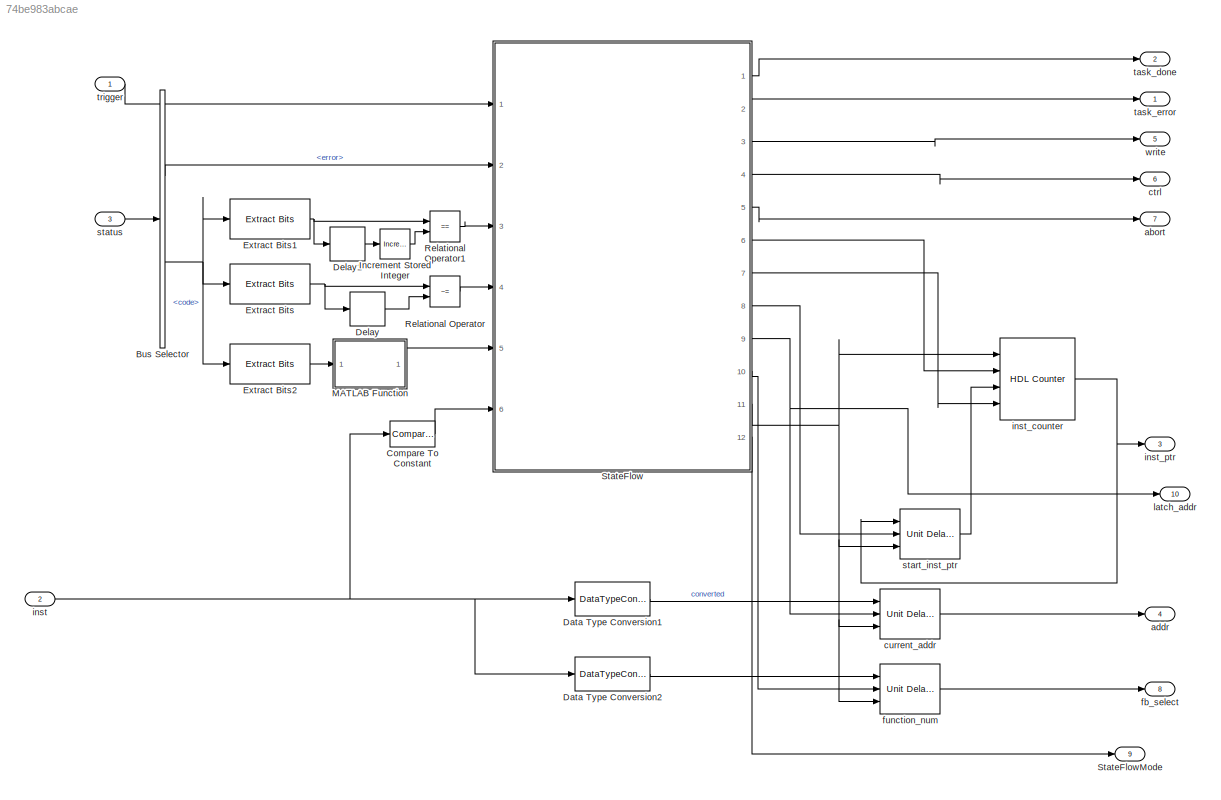
MODEL slx_74be983abcae
KIND model
CONFIG AbsTol = auto
CONFIG EnableMultiTasking = off
CONFIG FixedStep = auto
CONFIG MaxStep = auto
CONFIG MinStep = auto
CONFIG RelTol = 1e-3
CONFIG SampleTimeConstraint = Unconstrained
CONFIG Solver = FixedStepAuto
CONFIG SolverName = FixedStepAuto
CONFIG StartTime = 0.0
CONFIG StopTime = 70
BLOCK [BusSelector] Bus Selector
  OutputAsBus = off
  OutputSignals = error,code
  Ports = [1, 2]
BLOCK [Reference] Compare To Constant  REF=simulink/Logic and Bit
Operations/Compare
To Constant
  Ports = [1, 1]
  SourceBlock = simulink/Logic and Bit\nOperations/Compare\nTo Constant
  SourceProductBaseCode = SL
  SourceProductName = Simulink
  SourceType = Compare To Constant
BLOCK [DataTypeConversion] Data Type Conversion1
  RndMeth = Floor
  SaturateOnIntegerOverflow = off
BLOCK [DataTypeConversion] Data Type Conversion2
  RndMeth = Floor
  SaturateOnIntegerOverflow = off
BLOCK [Delay] Delay
  DelayLength = 1
  InputPortMap = u0
  Ports = [1, 1]
BLOCK [Delay] Delay1
  DelayLength = 1
  InputPortMap = u0
  Ports = [1, 1]
BLOCK [Reference] Extract Bits  REF=simulink/Logic and Bit
Operations/Extract Bits
  Ports = [1, 1]
  SourceBlock = simulink/Logic and Bit\nOperations/Extract Bits
  SourceProductBaseCode = SL
  SourceProductName = Simulink
  SourceType = Extract Bits
BLOCK [Reference] Extract Bits1  REF=simulink/Logic and Bit
Operations/Extract Bits
  Ports = [1, 1]
  SourceBlock = simulink/Logic and Bit\nOperations/Extract Bits
  SourceProductBaseCode = SL
  SourceProductName = Simulink
  SourceType = Extract Bits
BLOCK [Reference] Extract Bits2  REF=simulink/Logic and Bit
Operations/Extract Bits
  Ports = [1, 1]
  SourceBlock = simulink/Logic and Bit\nOperations/Extract Bits
  SourceProductBaseCode = SL
  SourceProductName = Simulink
  SourceType = Extract Bits
BLOCK [Reference] Increment Stored Integer  REF=simulink/Additional Math
& Discrete/Additional Math:
Increment - Decrement/Increment
Stored Integer
  Ports = [1, 1]
  SourceBlock = simulink/Additional Math\n& Discrete/Additional Math:\nIncrement - Decrement/Increment\nStored Integer
  SourceProductBaseCode = SL
  SourceProductName = Simulink
  SourceType = Stored Integer Value Increment
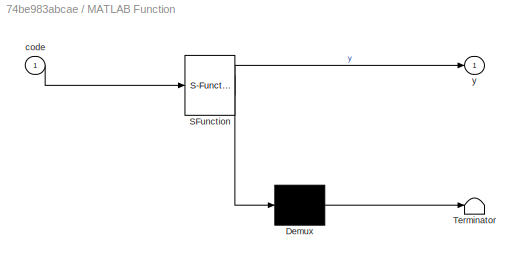
BLOCK [SubSystem] MATLAB Function
  ErrorFcn = Stateflow.Translate.translate
  PermitHierarchicalResolution = ExplicitOnly
  Ports = [1, 1]
  RequestExecContextInheritance = off
  SFBlockType = MATLAB Function
  TreatAsAtomicUnit = on
BLOCK [Demux] MATLAB Function/ Demux 
  Outputs = 1
  Ports = [1, 1]
BLOCK [S-Function] MATLAB Function/ SFunction 
  EnableBusSupport = on
  FunctionName = sf_sfun
  PortCounts = [1 2]
  Ports = [1, 2]
  SFcnIsStateOwnerBlock = off
  SFunctionDeploymentMode = off
  Tag = Stateflow S-Function local_sequencer 2
BLOCK [Terminator] MATLAB Function/ Terminator 
BLOCK [Inport] MATLAB Function/code
  IconDisplay = Port number
BLOCK [Outport] MATLAB Function/y
  IconDisplay = Port number
BLOCK [RelationalOperator] Relational Operator
  InputSameDT = off
  Operator = ~=
  OutDataTypeStr = boolean
  Ports = [2, 1]
BLOCK [RelationalOperator] Relational Operator1
  InputSameDT = off
  Operator = ==
  OutDataTypeStr = boolean
  Ports = [2, 1]
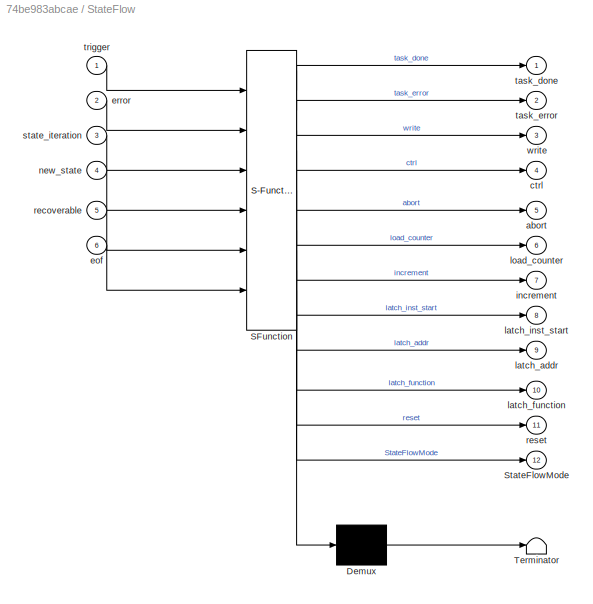
BLOCK [SubSystem] StateFlow
  ErrorFcn = Stateflow.Translate.translate
  PermitHierarchicalResolution = ExplicitOnly
  Ports = [6, 12]
  RequestExecContextInheritance = off
  SFBlockType = Chart
  TreatAsAtomicUnit = on
BLOCK [Demux] StateFlow/ Demux 
  Outputs = 1
  Ports = [1, 1]
BLOCK [S-Function] StateFlow/ SFunction 
  EnableBusSupport = on
  FunctionName = sf_sfun
  PortCounts = [6 13]
  Ports = [6, 13]
  SFcnIsStateOwnerBlock = off
  SFunctionDeploymentMode = off
  Tag = Stateflow S-Function local_sequencer 1
BLOCK [Terminator] StateFlow/ Terminator 
BLOCK [Outport] StateFlow/StateFlowMode
  IconDisplay = Port number
  Port = 12
BLOCK [Outport] StateFlow/abort
  IconDisplay = Port number
  Port = 5
BLOCK [Outport] StateFlow/ctrl
  IconDisplay = Port number
  Port = 4
BLOCK [Inport] StateFlow/eof
  IconDisplay = Port number
  Port = 6
BLOCK [Inport] StateFlow/error
  IconDisplay = Port number
  Port = 2
BLOCK [Outport] StateFlow/increment
  IconDisplay = Port number
  Port = 7
BLOCK [Outport] StateFlow/latch_addr
  IconDisplay = Port number
  Port = 9
BLOCK [Outport] StateFlow/latch_function
  IconDisplay = Port number
  Port = 10
BLOCK [Outport] StateFlow/latch_inst_start
  IconDisplay = Port number
  Port = 8
BLOCK [Outport] StateFlow/load_counter
  IconDisplay = Port number
  Port = 6
BLOCK [Inport] StateFlow/new_state
  IconDisplay = Port number
  Port = 4
BLOCK [Inport] StateFlow/recoverable
  IconDisplay = Port number
  Port = 5
BLOCK [Outport] StateFlow/reset
  IconDisplay = Port number
  Port = 11
BLOCK [Inport] StateFlow/state_iteration
  IconDisplay = Port number
  Port = 3
BLOCK [Outport] StateFlow/task_done
  IconDisplay = Port number
BLOCK [Outport] StateFlow/task_error
  IconDisplay = Port number
  Port = 2
BLOCK [Inport] StateFlow/trigger
  IconDisplay = Port number
BLOCK [Outport] StateFlow/write
  IconDisplay = Port number
  Port = 3
BLOCK [Outport] StateFlowMode
  IconDisplay = Port number
  Port = 9
BLOCK [Outport] abort
  IconDisplay = Port number
  OutDataTypeStr = boolean
  Port = 7
BLOCK [Outport] addr
  IconDisplay = Port number
  OutDataTypeStr = task_memory_addr_type
  OutMin = [0]
  Port = 4
BLOCK [Outport] ctrl
  IconDisplay = Port number
  OutDataTypeStr = boolean
  Port = 6
BLOCK [Reference] current_addr  REF=hdlsllib/Discrete/Unit Delay Enabled Resettable
Synchronous
  Ports = [3, 1]
  SourceBlock = hdlsllib/Discrete/Unit Delay Enabled Resettable\nSynchronous
  SourceProductBaseCode = HD
  SourceProductName = HDL Coder
  SourceType = Unit Delay Enabled Resettable Synchronous
BLOCK [Outport] fb_select
  IconDisplay = Port number
  OutDataTypeStr = fb_select_type
  Port = 8
BLOCK [Reference] function_num  REF=hdlsllib/Discrete/Unit Delay Enabled Resettable
Synchronous
  Ports = [3, 1]
  SourceBlock = hdlsllib/Discrete/Unit Delay Enabled Resettable\nSynchronous
  SourceProductBaseCode = HD
  SourceProductName = HDL Coder
  SourceType = Unit Delay Enabled Resettable Synchronous
BLOCK [Inport] inst
  IconDisplay = Port number
  OutDataTypeStr = task_inst_data_type
  Port = 2
  SampleTime = 1
  SignalType = real
BLOCK [Reference] inst_counter  REF=hdlsllib/Sources/HDL Counter
  Ports = [4, 1]
  SourceBlock = hdlsllib/Sources/HDL Counter
  SourceProductBaseCode = HD
  SourceProductName = HDL Coder
  SourceType = HDL Counter
BLOCK [Outport] inst_ptr
  IconDisplay = Port number
  OutDataTypeStr = task_inst_ptr_type
  Port = 3
BLOCK [Outport] latch_addr
  IconDisplay = Port number
  OutDataTypeStr = boolean
  OutMin = [0]
  Port = 10
BLOCK [Reference] start_inst_ptr  REF=hdlsllib/Discrete/Unit Delay Enabled Resettable
Synchronous
  Ports = [3, 1]
  SourceBlock = hdlsllib/Discrete/Unit Delay Enabled Resettable\nSynchronous
  SourceProductBaseCode = HD
  SourceProductName = HDL Coder
  SourceType = Unit Delay Enabled Resettable Synchronous
BLOCK [Inport] status
  IconDisplay = Port number
  OutDataTypeStr = Bus: fb_status
  Port = 3
  SampleTime = 1
BLOCK [Outport] task_done
  IconDisplay = Port number
  OutDataTypeStr = boolean
  Port = 2
BLOCK [Outport] task_error
  IconDisplay = Port number
  OutDataTypeStr = boolean
BLOCK [Inport] trigger
  IconDisplay = Port number
  OutDataTypeStr = boolean
  SampleTime = 1
BLOCK [Outport] write
  IconDisplay = Port number
  OutDataTypeStr = boolean
  Port = 5
LINE Bus Selector:1 -> StateFlow:2
NET Bus Selector:2 -> Extract Bits1:1, Extract Bits2:1, Extract Bits:1
LINE Compare To Constant:1 -> StateFlow:6
LINE Data Type Conversion1:1 -> current_addr:1
LINE Data Type Conversion2:1 -> function_num:1
LINE Delay1:1 -> Increment Stored Integer:1
LINE Delay:1 -> Relational Operator:2
NET Extract Bits1:1 -> Delay1:1, Relational Operator1:1
LINE Extract Bits2:1 -> MATLAB Function:1
NET Extract Bits:1 -> Delay:1, Relational Operator:1
LINE Increment Stored Integer:1 -> Relational Operator1:2
LINE MATLAB Function:1 -> StateFlow:5
LINE Relational Operator1:1 -> StateFlow:3
LINE Relational Operator:1 -> StateFlow:4
LINE StateFlow:1 -> task_done:1
LINE StateFlow:10 -> function_num:2
NET StateFlow:11 -> current_addr:3, function_num:3, inst_counter:1, start_inst_ptr:3
LINE StateFlow:12 -> StateFlowMode:1
LINE StateFlow:2 -> task_error:1
LINE StateFlow:3 -> write:1
LINE StateFlow:4 -> ctrl:1
LINE StateFlow:5 -> abort:1
LINE StateFlow:6 -> inst_counter:2
LINE StateFlow:7 -> inst_counter:4
LINE StateFlow:8 -> start_inst_ptr:2
NET StateFlow:9 -> current_addr:2, latch_addr:1
LINE current_addr:1 -> addr:1
LINE function_num:1 -> fb_select:1
NET inst:1 -> Compare To Constant:1, Data Type Conversion1:1, Data Type Conversion2:1
NET inst_counter:1 -> inst_ptr:1, start_inst_ptr:1
LINE start_inst_ptr:1 -> inst_counter:3
LINE status:1 -> Bus Selector:1
LINE trigger:1 -> StateFlow:1
note: NET lines group one-source signal fan-out (src -> all destinations, sorted); 1:1 wires keep LINE
CHART Test Assessment Block states=67 transitions=117
  STATE_LABEL 'Run\nif TestCase == 1\n    verify(task_done ==  0);\n    verify(inst_ptr == 0);\n    verify(task_error == 0);\n    verify(latch_addr ==  0)\n    verify(write == 0)\n    verify(ctrl == 0)\n    verify(abort == 0)\n    verify(fb_select == 0);\nend'
  STATE_LABEL 'step2\nif TestCase == 2\n    verify(task_done ==  0);\n    verify(inst_ptr == 0);\n    verify(task_error == 0);\n    verify(latch_addr ==  0)\n    verify(write == 0)\n    verify(ctrl == 0)\n    verify(abort == 0)\n    verify(fb_select == 42);\nend'
  STATE_LABEL 'step3\nif TestCase == 2\n    verify(task_done ==  0);\n    verify(inst_ptr == 1);\n    verify(task_error == 0);\n    verify(latch_addr ==  0)\n    verify(write == 0)\n    verify(ctrl == 0)\n    verify(abort == 0)\n    verify(fb_select == 42);\nend'
  STATE_LABEL 'step4\nif TestCase == 3\n    verify(task_done ==  0);\n    verify(inst_ptr == 1);\n    verify(task_error == 0);\n    verify(latch_addr ==  1)\n    verify(int32(addr) == 32)\n    verify(write == 0)\n    verify(ctrl == 0)\n    verify(abort == 0)\n    verify(fb_select == 42);\nend'
  STATE_LABEL 'step5\nif TestCase == 3\n    verify(task_done ==  0);\n    verify(inst_ptr == 1);\n    verify(task_error == 0);\n    verify(latch_addr ==  0)\n    verify(write == 0)\n    verify(ctrl == 0)\n    verify(abort == 0)\n    verify(fb_select == 42);\nend'
  STATE_LABEL 'step6\nif TestCase == 3\n    verify(task_done ==  0);\n    verify(inst_ptr == 1);\n    verify(task_error == 0);\n    verify(latch_addr ==  0)\n    verify(write == 0)\n    verify(ctrl == 1)\n    verify(abort == 0)\n    verify(fb_select == 42);\nend'
  STATE_LABEL 'step7\nif TestCase == 3\n    verify(task_done ==  0);\n    verify(inst_ptr == 1);\n    verify(task_error == 0);\n    verify(latch_addr ==  0)\n    verify(write == 0)\n    verify(ctrl == 0)\n    verify(abort == 0)\n    verify(fb_select == 42);\nend'
  STATE_LABEL 'step8\nif TestCase == 3\n    verify(task_done ==  0);\n    verify(inst_ptr == 2);\n    verify(task_error == 0);\n    verify(latch_addr ==  0)\n    verify(write == 0)\n    verify(ctrl == 0)\n    verify(abort == 0)\n    verify(fb_select == 42);\nend'
  STATE_LABEL 'step9\nif TestCase == 4\n    verify(task_done ==  0);\n    verify(inst_ptr == 2);\n    verify(task_error == 0);\n    verify(latch_addr ==  1)\n    verify(write == 0)\n    verify(ctrl == 0)\n    verify(abort == 0)\n    verify(fb_select == 42);\nend'
  STATE_LABEL 'step10\nif TestCase == 4\n    verify(task_done ==  0);\n    verify(inst_ptr == 2);\n    verify(task_error == 0);\n    verify(latch_addr ==  0)\n    verify(write == 0)\n    verify(ctrl == 0)\n    verify(abort == 0)\n    verify(fb_select == 42);\nend'
  STATE_LABEL 'step11\nif TestCase == 4\n    verify(task_done ==  0);\n    verify(inst_ptr == 2);\n    verify(task_error == 0);\n    verify(latch_addr ==  0)\n    verify(write == 0)\n    verify(ctrl == 1)\n    verify(abort == 0)\n    verify(fb_select == 42);\nend'
  STATE_LABEL 'step12\nif TestCase == 4\n    verify(task_done ==  0);\n    verify(inst_ptr == 2);\n    verify(task_error == 0);\n    verify(latch_addr ==  0)\n    verify(write == 0)\n    verify(ctrl == 0)\n    verify(abort == 0)\n    verify(fb_select == 42);\nend'
  STATE_LABEL 'step13\nif TestCase == 4\n    verify(task_done ==  0);\n    verify(inst_ptr == 2);\n    verify(task_error == 0);\n    verify(latch_addr ==  0)\n    verify(write == 0)\n    verify(ctrl == 0)\n    verify(abort == 0)\n    verify(fb_select == 42);\nend'
  STATE_LABEL 'step14\nif TestCase == 4\n    verify(task_done ==  0);\n    verify(inst_ptr == 3);\n    verify(task_error == 0);\n    verify(latch_addr ==  0)\n    verify(write == 0)\n    verify(ctrl == 0)\n    verify(abort == 0)\n    verify(fb_select == 42);\nend'
  STATE_LABEL 'step15\nif TestCase == 5\n    verify(task_done ==  0);\n    verify(inst_ptr == 3);\n    verify(task_error == 0);\n    verify(latch_addr ==  1)\n    verify(write == 0)\n    verify(ctrl == 0)\n    verify(abort == 0)\n    verify(fb_select == 42);\nend'
  STATE_LABEL 'step16\nif TestCase == 5\n    verify(task_done ==  0);\n    verify(inst_ptr == 3);\n    verify(task_error == 0);\n    verify(latch_addr ==  0)\n    verify(write == 0)\n    verify(ctrl == 0)\n    verify(abort == 0)\n    verify(fb_select == 42);\nend'
  STATE_LABEL 'step17\nif TestCase == 5\n    verify(task_done ==  0);\n    verify(inst_ptr == 3);\n    verify(task_error == 0);\n    verify(latch_addr ==  0)\n    verify(write == 0)\n    verify(ctrl == 1)\n    verify(abort == 0)\n    verify(fb_select == 42);\nend'
  STATE_LABEL 'step18\nif TestCase == 5\n    verify(task_done ==  0);\n    verify(inst_ptr == 3);\n    verify(task_error == 0);\n    verify(latch_addr ==  0)\n    verify(write == 0)\n    verify(ctrl == 0)\n    verify(abort == 0)\n    verify(fb_select == 42);\nend'
  STATE_LABEL 'step19\nif TestCase == 5\n    verify(task_done ==  0);\n    verify(inst_ptr == 3);\n    verify(task_error == 0);\n    verify(latch_addr ==  0)\n    verify(write == 0)\n    verify(ctrl == 0)\n    verify(abort == 0)\n    verify(fb_select == 42);\nend'
  STATE_LABEL 'step20\nif TestCase == 5\n    verify(task_done ==  0);\n    verify(inst_ptr == 4);\n    verify(task_error == 0);\n    verify(latch_addr ==  0)\n    verify(write == 0)\n    verify(ctrl == 0)\n    verify(abort == 0)\n    verify(fb_select == 42);\nend'
  STATE_LABEL 'step21\nif TestCase == 6\n    verify(task_done ==  0);\n    verify(inst_ptr == 4);\n    verify(task_error == 0);\n    verify(latch_addr ==  0)\n    verify(write == 0)\n    verify(ctrl == 1)\n    verify(abort == 0)\n    verify(fb_select == 42);\nend'
  STATE_LABEL 'step22\nif TestCase == 6\n    verify(task_done ==  0);\n    verify(inst_ptr == 4);\n    verify(task_error == 0);\n    verify(latch_addr ==  0)\n    verify(write == 0)\n    verify(ctrl == 0)\n    verify(abort == 0)\n    verify(fb_select == 42);\nend'
  STATE_LABEL 'step23\nif TestCase == 7\n    verify(task_done ==  0);\n    verify(inst_ptr == 4);\n    verify(task_error == 0);\n    verify(latch_addr ==  1);\n    verify(write == 0)\n    verify(ctrl == 0)\n    verify(abort == 0)\n    verify(fb_select == 42);\nend'
  STATE_LABEL 'step24\nif TestCase == 7\n    verify(task_done ==  0);\n    verify(inst_ptr == 4);\n    verify(task_error == 0);\n    verify(latch_addr ==  0);\n    verify(write == 0)\n    verify(ctrl == 1)\n    verify(abort == 0)\n    verify(fb_select == 42);\nend'
  STATE_LABEL 'step25\nif TestCase == 8\n    verify(task_done ==  0);\n    verify(inst_ptr == 4);\n    verify(task_error == 0);\n    verify(latch_addr ==  0);\n    verify(write == 0)\n    verify(ctrl == 0)\n    verify(abort == 0)\n    verify(fb_select == 42);\nend'
  STATE_LABEL 'step26\nif TestCase == 8\n    verify(task_done ==  0);\n    verify(inst_ptr == 4);\n    verify(task_error == 0);\n    verify(latch_addr ==  0);\n    verify(write == 1)\n    verify(ctrl == 0)\n    verify(abort == 0)\n    verify(fb_select == 42);\nend'
  STATE_LABEL 'step27\nif TestCase == 8\n    verify(task_done ==  0);\n    verify(inst_ptr == 4);\n    verify(task_error == 0);\n    verify(latch_addr ==  0);\n    verify(write == 0)\n    verify(ctrl == 0)\n    verify(abort == 0)\n    verify(fb_select == 42);\nend'
  STATE_LABEL 'step28\nif TestCase == 8\n    verify(task_done ==  0);\n    verify(inst_ptr == 5);\n    verify(task_error == 0);\n    verify(latch_addr ==  0);\n    verify(write == 0)\n    verify(ctrl == 0)\n    verify(abort == 0)\n    verify(fb_select == 42);\nend'
  STATE_LABEL 'step29\nif TestCase == 9\n    verify(task_done ==  0);\n    verify(inst_ptr == 5);\n    verify(task_error == 0);\n    verify(latch_addr ==  1);\n    verify(write == 0)\n    verify(ctrl == 0)\n    verify(abort == 0)\n    verify(fb_select == 42);\nend'
  STATE_LABEL 'step30\nif TestCase == 9\n    verify(task_done ==  0);\n    verify(inst_ptr == 5);\n    verify(task_error == 0);\n    verify(latch_addr ==  0);\n    verify(write == 0)\n    verify(ctrl == 1)\n    verify(abort == 0)\n    verify(fb_select == 42);\nend'
  STATE_LABEL 'step31\nif TestCase == 9\n    verify(task_done ==  0);\n    verify(inst_ptr == 5);\n    verify(task_error == 0);\n    verify(latch_addr ==  0);\n    verify(write == 0)\n    verify(ctrl == 0)\n    verify(abort == 0)\n    verify(fb_select == 42);\nend'
  STATE_LABEL 'step32\nif TestCase == 9\n    verify(task_done ==  0);\n    verify(inst_ptr == 5);\n    verify(task_error == 0);\n    verify(latch_addr ==  0);\n    verify(write == 1)\n    verify(ctrl == 0)\n    verify(abort == 0)\n    verify(fb_select == 42);\nend'
  STATE_LABEL 'step33\nif TestCase == 9\n    verify(task_done ==  0);\n    verify(inst_ptr == 5);\n    verify(task_error == 0);\n    verify(latch_addr ==  0);\n    verify(write == 0)\n    verify(ctrl == 0)\n    verify(abort == 0)\n    verify(fb_select == 42);\nend'
  STATE_LABEL 'step34\nif TestCase == 9\n    verify(task_done ==  0);\n    verify(inst_ptr == 6);\n    verify(task_error == 0);\n    verify(latch_addr ==  0);\n    verify(write == 0)\n    verify(ctrl == 0)\n    verify(abort == 0)\n    verify(fb_select == 42);\nend'
  STATE_LABEL 'step35\nif TestCase == 9\n    verify(task_done ==  0);\n    verify(inst_ptr == 6);\n    verify(task_error == 0);\n    verify(latch_addr ==  0);\n    verify(write == 0)\n    verify(ctrl == 1)\n    verify(abort == 0)\n    verify(fb_select == 42);\nend'
  STATE_LABEL 'step36\nif TestCase == 9\n    verify(task_done ==  0);\n    verify(inst_ptr == 6);\n    verify(task_error == 0);\n    verify(latch_addr ==  0);\n    verify(write == 0)\n    verify(ctrl == 0)\n    verify(abort == 0)\n    verify(fb_select == 42);\nend'
  STATE_LABEL 'step37\nif TestCase == 10\n    verify(task_done ==  0);\n    verify(inst_ptr == 6);\n    verify(task_error == 0);\n    verify(latch_addr ==  0);\n    verify(write == 0)\n    verify(ctrl == 0)\n    verify(abort == 0)\n    verify(fb_select == 42);\nend'
  STATE_LABEL 'step38\nif TestCase == 10\n    verify(task_done ==  0);\n    verify(inst_ptr == 6);\n    verify(task_error == 0);\n    verify(latch_addr ==  0);\n    verify(write == 0)\n    verify(ctrl == 0)\n    verify(abort == 0)\n    verify(fb_select == 41);\nend'
  STATE_LABEL 'step39\nif TestCase == 10\n    verify(task_done ==  0);\n    verify(inst_ptr == 7);\n    verify(task_error == 0);\n    verify(latch_addr ==  0);\n    verify(write == 0)\n    verify(ctrl == 0)\n    verify(abort == 0)\n    verify(fb_select == 41);\nend'
  STATE_LABEL 'step40\nif TestCase == 11\n    verify(task_done ==  0);\n    verify(inst_ptr == 7);\n    verify(task_error == 0);\n    verify(latch_addr ==  1);\n    verify(write == 0)\n    verify(ctrl == 0)\n    verify(abort == 0)\n    verify(fb_select == 41);\nend'
CHART Test Sequence states=34 transitions=91
  STATE_LABEL 'Run\n\n%% Initialize data outputs.\ntrigger = false;\ninst = 42;\nstatus.done = false;\nstatus.busy = false;\nstatus.error = false;\nstatus.code = uint32(0);'
  STATE_LABEL 'step_1\ntrigger = true;'
  STATE_LABEL 'step_2\ninst = 42;'
  STATE_LABEL 'step_3\ninst = 32;\nstatus.code = uint32(0);'
  STATE_LABEL 'step_4\nstatus.code = uint32(4194304);'
  STATE_LABEL 'step_5\nstatus.code = uint32(8388608);'
  STATE_LABEL 'step_6\nstatus.code = uint32(268435456)'
  STATE_LABEL 'step_7\nstatus.code = uint32(536870912)'
  STATE_LABEL 'step_8\nstatus.code = uint32(541065216)\ninst = 41'
  STATE_LABEL 'step_9\nstatus.code = uint32(805306369)'
  STATE_LABEL 'step_10\nstatus.error = logical(1);'
  STATE_LABEL 'step_11\nstatus.code = uint32(0)'
  STATE_LABEL 'step_12\nstatus.code = uint32(4194305)'
  STATE_LABEL 'step_13\nstatus.error = logical(0);'
  STATE_LABEL 'step_14\nstatus.code = uint32(268435456);\n'
  STATE_LABEL 'step_15\nstatus.error = logical(1);'
  STATE_LABEL 'step_16\ntrigger =false;\ninst = 42;\nstatus.error = logical(0);'
  STATE_LABEL 'step_17\ntrigger = true;\nstatus.code = uint32(0);\ninst =50;'
  STATE_LABEL 'step_18\nstatus.code = uint32(268435456);\n'
  STATE_LABEL 'step_19\nstatus.code = uint32(536870912);'
  STATE_LABEL 'step_20\nstatus.error = logical(1);\nstatus.code = uint32(4194305)'
  STATE_LABEL 'step_21\nstatus.error = logical(0);\nstatus.code = uint32(0);\ninst =50;'
  STATE_LABEL 'step_22\nstatus.code = uint32(268435456);\n'
  STATE_LABEL 'step_23\nstatus.code = uint32(536870912)'
  STATE_LABEL 'step_24\nstatus.code = uint32(805306369)'
  STATE_LABEL 'step_25\nstatus.code = uint32(1073741824)'
  STATE_LABEL 'step_26\nstatus.code = uint32(1342177280)\ninst = 2147483647'
  STATE_LABEL 'step_27\ntrigger = false;'
  STATE_LABEL 'step_28\ntrigger = true;\ninst=52;\nstatus.code = uint32(0);'
  STATE_LABEL 'step_29\n'
  STATE_LABEL 'step_30\nstatus.code = uint32(268435456);'
  STATE_LABEL 'step_31\nstatus.code = uint32(536870912)'
  STATE_LABEL 'step_32\nstatus.error = logical(1);'
  STATE_LABEL 'EndTest'
CHART StateFlow states=32 transitions=60
  STATE_LABEL 'Make trigger and enable to chart?'
  STATE_LABEL 'INIT\ntask_done = false;\ntask_error = false;\nwrite = false;\nload_counter = false;\nctrl = false;\nabort = false;\nincrement = false;\nlatch_inst_start = false;\nlatch_addr = false;\nlatch_function = false;\nreset = true;\n\n'
  STATE_LABEL 'FB_SELECT\n'
  STATE_LABEL 'LOAD_INST_START\ntask_done = false;\ntask_error = false;\nwrite = false;\nctrl = false;\nabort = false;\nload_counter = true;\nincrement = false;\nlatch_inst_start = false;\nlatch_addr = false;\nlatch_function = false;\nreset = false;\n\n'
  STATE_LABEL 'LATCH_INST_START\ntask_done = false;\ntask_error = false;\nwrite = false;\nctrl = false;\nabort = false;\nload_counter = false;\nincrement = false;\nlatch_inst_start = true;\nlatch_addr = false;\nlatch_function = true;\nreset = false;\n\n'
  STATE_LABEL 'INCREMENT_INST\ntask_done = false;\ntask_error = false;\nwrite = false;\nctrl = false;\nabort = false;\nload_counter = false;\nincrement = true;\nlatch_inst_start = false;\nlatch_addr = false;\nlatch_function = false;\nreset = false;\n\n'  <repeated x4 — deduplicated; at blocks: StateFlow>
  STATE_LABEL 'INST_WAIT\ntask_done = false;\ntask_error = false;\nwrite = false;\nctrl = false;\nabort = false;\nload_counter = false;\nincrement = false;\nlatch_inst_start = false;\nlatch_addr = false;\nlatch_function = false;\nreset = false;\n\n'  <repeated x4 — deduplicated; at blocks: StateFlow>
  STATE_LABEL '[recoverable]'
  STATE_LABEL 'LOAD_INST_START\ntask_done = false;\ntask_error = false;\nwrite = false;\nctrl = false;\nabort = false;\nload_counter = true;\nincrement = false;\nlatch_inst_start = false;\nlatch_addr = false;\nlatch_function = false;\nreset = false;\n\n'
  STATE_LABEL 'LATCH_INST_START\ntask_done = false;\ntask_error = false;\nwrite = false;\nctrl = false;\nabort = false;\nload_counter = false;\nincrement = false;\nlatch_inst_start = true;\nlatch_addr = false;\nlatch_function = true;\nreset = false;\n\n'
  STATE_LABEL 'FETCH\n'
  STATE_LABEL 'CTRL_LO\ntask_done = false;\ntask_error = false;\nwrite = false;\nctrl = false;\nabort = false;\nload_counter = false;\nincrement = false;\nlatch_inst_start = false;\nlatch_addr = false;\nlatch_function = false;\nreset = false;\n\n'  <repeated x4 — deduplicated; at blocks: StateFlow>
  STATE_LABEL 'CTRL_HI\ntask_done = false;\ntask_error = false;\nwrite = false;\nctrl = true;\nabort = false;\nload_counter = false;\nincrement = false;\nlatch_inst_start = false;\nlatch_addr = false;\nlatch_function = false;\nreset = false;\n\n'  <repeated x4 — deduplicated; at blocks: StateFlow>
  STATE_LABEL 'LATCH_ADDR\ntask_done = false;\ntask_error = false;\nwrite = false;\nctrl = false;\nabort = false;\nload_counter = false;\nincrement = false;\nlatch_inst_start = false;\nlatch_addr = true;\nlatch_function = false;\nreset = false;\n\n'
  STATE_LABEL 'MEM_WAIT\ntask_done = false;\ntask_error = false;\nwrite = false;\nctrl = false;\nabort = false;\nload_counter = false;\nincrement = false;\nlatch_inst_start = false;\nlatch_addr = false;\nlatch_function = false;\nreset = false;\n\n'
  STATE_LABEL 'LATCH_ADDR\ntask_done = false;\ntask_error = false;\nwrite = false;\nctrl = false;\nabort = false;\nload_counter = false;\nincrement = false;\nlatch_inst_start = false;\nlatch_addr = true;\nlatch_function = false;\nreset = false;\n\n'
  STATE_LABEL 'MEM_WAIT\ntask_done = false;\ntask_error = false;\nwrite = false;\nctrl = false;\nabort = false;\nload_counter = false;\nincrement = false;\nlatch_inst_start = false;\nlatch_addr = false;\nlatch_function = false;\nreset = false;\n\n'
  STATE_LABEL 'FB_EXECUTE'
  STATE_LABEL '[new_state]'
  STATE_LABEL 'ERROR'
  STATE_LABEL 'CTRL_HI\n%set control and clear init\ntask_done = false;\ntask_error = false;\nwrite = false;\nctrl = true;\nabort = false;\nload_counter = false;\nincrement = false;\nlatch_inst_start = false;\nlatch_addr = false;\nlatch_function = false;\nreset = false;\n\n\n'
  STATE_LABEL 'ABORT_CTRL_LO\n%task_error and init \n%unchanged\ntask_done = false;\ntask_error = task_error;\nwrite = false;\nctrl = false;\nabort = false;\nload_counter = false;\nincrement = false;\nlatch_inst_start = false;\nlatch_addr = false;\nlatch_function = false;\nreset = false;\n\n'
  STATE_LABEL 'ABORT_CTRL_HI\n%set control, abort, and init\ntask_done = false;\ntask_error = true;\nwrite = false;\nctrl = true;\nabort = true;\nload_counter = false;\nincrement = false;\nlatch_inst_start = false;\nlatch_addr = false;\nlatch_function = false;\nreset = false;\n\n'
  STATE_LABEL '[recoverable]'
  STATE_LABEL 'CTRL_HI\n%set control and clear init\ntask_done = false;\ntask_error = false;\nwrite = false;\nctrl = true;\nabort = false;\nload_counter = false;\nincrement = false;\nlatch_inst_start = false;\nlatch_addr = false;\nlatch_function = false;\nreset = false;\n\n\n'
  STATE_LABEL 'ABORT_CTRL_LO\n%task_error and init \n%unchanged\ntask_done = false;\ntask_error = task_error;\nwrite = false;\nctrl = false;\nabort = false;\nload_counter = false;\nincrement = false;\nlatch_inst_start = false;\nlatch_addr = false;\nlatch_function = false;\nreset = false;\n\n'
  STATE_LABEL 'ABORT_CTRL_HI\n%set control, abort, and init\ntask_done = false;\ntask_error = true;\nwrite = false;\nctrl = true;\nabort = true;\nload_counter = false;\nincrement = false;\nlatch_inst_start = false;\nlatch_addr = false;\nlatch_function = false;\nreset = false;\n\n'
  STATE_LABEL 'WRITE'
CHART MATLAB Function states=1 transitions=1
  STATE_LABEL 'eML_blk_kernel()'
  STATE_LABEL 'SCRIPT:\nfunction y = recoverable(code)\n%#codegen\n\nif(code)\n    y = true;\nelse\n    y = false;\nend\n\n    '
CHART Test Sequence states=9 transitions=18
  STATE_LABEL 'Run\n\n%% Initialize data outputs.\ntrigger = false;\nstatus.done = false;\nstatus.busy = false;\nstatus.error = false;\nstatus.code = uint32(0);\n'
  STATE_LABEL 'step_1\ntrigger = true;\nstatus.code = 0;'
  STATE_LABEL 'step_2\nif(before(1, tick))\n    status.code = status.code + 2^22\nend'
  STATE_LABEL 'step_3\nif(before(1, tick))\n    status.code = status.code + 2^22\nend'
  STATE_LABEL 'step_4\nif(before(1, tick))\n    status.code = status.code + 2^22\nend'
  STATE_LABEL 'step_5\nif(before(1, tick))\n    status.code = status.code + 2^28;\nend'
  STATE_LABEL 'step_6\nif(before(1, tick))\n    status.code = status.code + 2^28;\nend'
  STATE_LABEL 'step_7\nif(before(1, tick))\n    status.code = status.code + 2^22\nend'
  STATE_LABEL 'step_8\nif(before(1, tick))\n    status.code = status.code + 2^28;\nend'
CHART MATLAB Function states=1 transitions=1
  STATE_LABEL 'eML_blk_kernel()'
  STATE_LABEL 'SCRIPT:\nfunction y = recoverable(code)\n%#codegen\n\nif(code)\n    y = true;\nelse\n    y = false;\nend\n\n    '
CHART Test Sequence1 states=15 transitions=21
  STATE_LABEL 'Run\n\n%% Initialize data outputs.\ntrigger = false;\ndone = false;\nbusy_cycled = false;\nerror = false;\nnew_fb_state = false;\nrecoverable = false;\neof = false;\nto_done = true;\n'
  STATE_LABEL 'step_1\n%trigger chart\ntrigger = true;\ndone = false;\nbusy_cycled = false;\nerror = false;\nnew_fb_state = false;\nrecoverable = false;\neof = false;\n'
  STATE_LABEL 'step_11\n%NOP\ntrigger = true;\ndone = false;\nbusy_cycled = false;\nerror = false;\nnew_fb_state = false;\nrecoverable = false;\neof = false;'
  STATE_LABEL 'step_2\n%FB cycled not new state\ntrigger = true;\ndone = false;\nbusy_cycled = true;\nerror = false;\nnew_fb_state = false;\nrecoverable = false;\neof = false;'
  STATE_LABEL 'step_3\n%NOP\ntrigger = true;\ndone = false;\nbusy_cycled = false;\nerror = false;\nnew_fb_state = false;\nrecoverable = false;\neof = false;'
  STATE_LABEL 'step_4\n%FB cycled and new state\ntrigger = true;\ndone = false;\nbusy_cycled = true;\nerror = false;\nnew_fb_state = true;\nrecoverable = false;\neof = false;'
  STATE_LABEL 'step_5\n%NOP\ntrigger = true;\ndone = false;\nbusy_cycled = false;\nerror = false;\nnew_fb_state = false;\nrecoverable = false;\neof = false;'
  STATE_LABEL 'step_6\n%FB cyled not new state\ntrigger = true;\ndone = false;\nbusy_cycled = true;\nerror = false;\nnew_fb_state = false;\nrecoverable = false;\neof = false;'
  STATE_LABEL 'step_10\n%NOP\ntrigger = true;\ndone = false;\nbusy_cycled = false;\nerror = false;\nnew_fb_state = false;\nrecoverable = false;\neof = false;'
  STATE_LABEL 'step_12\n%FB cycled FB not done\ntrigger = true;\ndone = false;\nbusy_cycled = true;\nerror = false;\nnew_fb_state = false;\nrecoverable = false;\neof = false;'
  STATE_LABEL 'step_7\n%FB cycled and FB done\ntrigger = true;\ndone = true;\nbusy_cycled = true;\nerror = false;\nnew_fb_state = false;\nrecoverable = false;\neof = false;'
  STATE_LABEL 'step_8\n%FB_DONE\ntrigger = true;\ndone = false;\nbusy_cycled = false;\nerror = false;\nnew_fb_state = false;\nrecoverable = false;\neof = false;\nto_done = false;'
  STATE_LABEL 'step_9\n%TASK_DONE\ntrigger = true;\ndone = false;\nbusy_cycled = false;\nerror = false;\nnew_fb_state = false;\nrecoverable = false;\neof = true;'
  STATE_LABEL 'step_13\n%back to init\ntrigger = false;\ndone = false;\nbusy_cycled = false;\nerror = false;\nnew_fb_state = false;\nrecoverable = false;\neof = false;\n'
  STATE_LABEL 'step_14'
CHART Test Sequence states=11 transitions=11
  STATE_LABEL 'Run\n\n%% Initialize data outputs.\ntrigger = false;\ndone = false;\nbusy_cycled = false;\nerror = false;\nnew_fb_state = false;\nrecoverable = false;\neof = false;\n'
  STATE_LABEL 'step_1\ntrigger = true;\ndone = false;\nbusy_cycled = false;\nerror = false;\nnew_fb_state = false;\nrecoverable = false;\neof = false;'
  STATE_LABEL 'step_2\ntrigger = true;\ndone = false;\nbusy_cycled = false;\nerror = false;\nnew_fb_state = false;\nrecoverable = false;\neof = false;'
  STATE_LABEL 'step_3\ntrigger = true;\ndone = false;\nbusy_cycled = false;\nerror = true;\nnew_fb_state = false;\nrecoverable = true;\neof = false;'
  STATE_LABEL 'step_4\ntrigger = true;\ndone = false;\nbusy_cycled = false;\nerror = false;\nnew_fb_state = false;\nrecoverable = false;\neof = false;'
  STATE_LABEL 'step_8\ntrigger = true;\ndone = false;\nbusy_cycled = false;\nerror = false;\nnew_fb_state = false;\nrecoverable = false;\neof = false;'
  STATE_LABEL 'step_5\ntrigger = true;\ndone = false;\nbusy_cycled = false;\nerror = false;\nnew_fb_state = false;\nrecoverable = false;\neof = false;'
  STATE_LABEL 'step_6\ntrigger = true;\ndone = false;\nbusy_cycled = true;\nerror = false;\nnew_fb_state = true;\nrecoverable = false;\neof = false;'
  STATE_LABEL 'step_7\ntrigger = true;\ndone = false;\nbusy_cycled = false;\nerror = true;\nnew_fb_state = false;\nrecoverable = false;\neof = false;'
  STATE_LABEL 'step_9\ntrigger = true;\ndone = false;\nbusy_cycled = false;\nerror = false;\nnew_fb_state = false;\nrecoverable = false;\neof = false;'
  STATE_LABEL 'step_10\ntrigger = false;\ndone = false;\nbusy_cycled = false;\nerror = false;\nnew_fb_state = false;\nrecoverable = false;\neof = false;'
